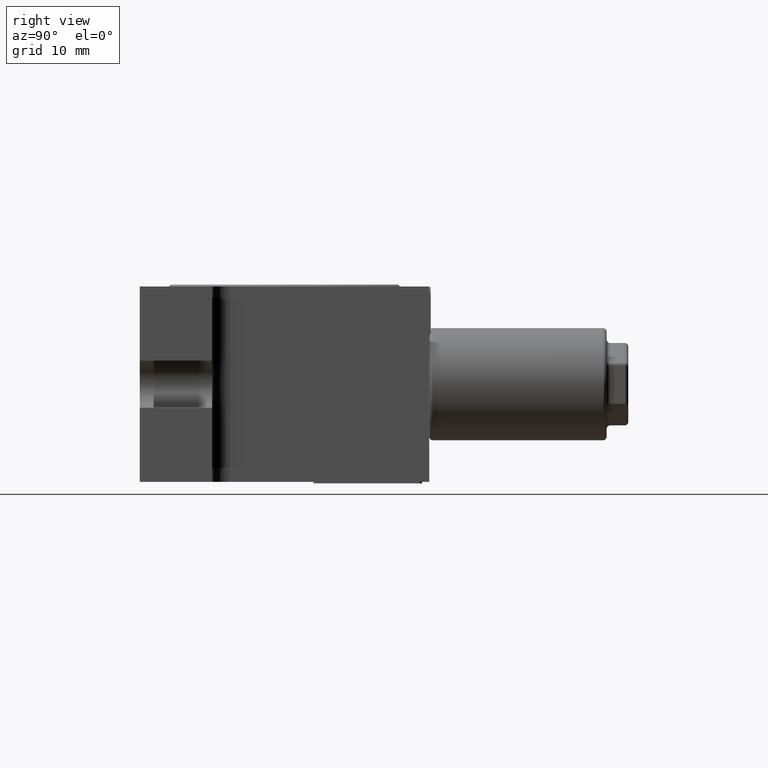
[diagram: clean part render]
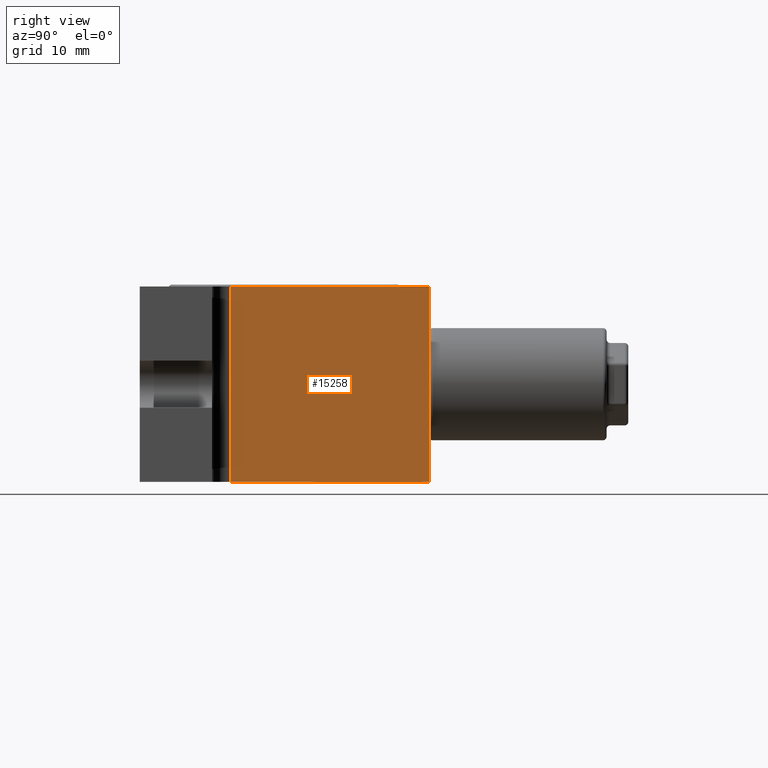
[diagram: same view with one face highlighted and labeled with its STEP entity id]
A machine part, right view. The second image highlights one B-rep face of the part: STEP entity #15258.
In plain terms, the highlighted planar face has unit normal (-1, 0, 0).
Its self-contained STEP definition (entity closure, byte-faithful):
#1023 = CARTESIAN_POINT ( 'NONE',  ( 20.00000000000000000, 20.00000000000000000, 13.50000000000000000 ) ) ;
#1030 = ORIENTED_EDGE ( 'NONE', *, *, #23257, .T. ) ;
#1065 = VECTOR ( 'NONE', #22678, 1000.000000000000000 ) ;
#2029 = ORIENTED_EDGE ( 'NONE', *, *, #4028, .T. ) ;
#3037 = DIRECTION ( 'NONE',  ( 0.0000000000000000000, 0.0000000000000000000, 1.000000000000000000 ) ) ;
#4028 = EDGE_CURVE ( 'NONE', #4527, #13578, #16402, .T. ) ;
#4527 = VERTEX_POINT ( 'NONE', #22055 ) ;
#4857 = LINE ( 'NONE', #16434, #19182 ) ;
#4950 = AXIS2_PLACEMENT_3D ( 'NONE', #16456, #9137, #3037 ) ;
#4961 = PLANE ( 'NONE',  #4950 ) ;
#5504 = EDGE_CURVE ( 'NONE', #17760, #13578, #8255, .T. ) ;
#5576 = VECTOR ( 'NONE', #10614, 1000.000000000000000 ) ;
#5833 = EDGE_LOOP ( 'NONE', ( #5950, #2029, #16548, #1030 ) ) ;
#5950 = ORIENTED_EDGE ( 'NONE', *, *, #20218, .T. ) ;
#6220 = CARTESIAN_POINT ( 'NONE',  ( 20.00000000000000000, 20.00000000000000000, -13.50000000000000000 ) ) ;
#7259 = CARTESIAN_POINT ( 'NONE',  ( 20.00000000000000000, -7.500000000000000000, -13.50000000000000000 ) ) ;
#8255 = LINE ( 'NONE', #6220, #1065 ) ;
#9137 = DIRECTION ( 'NONE',  ( -1.000000000000000000, 0.0000000000000000000, 0.0000000000000000000 ) ) ;
#9394 = DIRECTION ( 'NONE',  ( -0.0000000000000000000, -0.0000000000000000000, -1.000000000000000000 ) ) ;
#10614 = DIRECTION ( 'NONE',  ( 0.0000000000000000000, -1.000000000000000000, 0.0000000000000000000 ) ) ;
#11503 = VECTOR ( 'NONE', #9394, 1000.000000000000000 ) ;
#12359 = VERTEX_POINT ( 'NONE', #1023 ) ;
#13578 = VERTEX_POINT ( 'NONE', #22430 ) ;
#15258 = ADVANCED_FACE ( 'NONE', ( #21832 ), #4961, .F. ) ;
#16402 = LINE ( 'NONE', #7259, #11503 ) ;
#16434 = CARTESIAN_POINT ( 'NONE',  ( 20.00000000000000000, 20.00000000000000000, -13.50000000000000000 ) ) ;
#16456 = CARTESIAN_POINT ( 'NONE',  ( 20.00000000000000000, 20.00000000000000000, -13.50000000000000000 ) ) ;
#16548 = ORIENTED_EDGE ( 'NONE', *, *, #5504, .F. ) ;
#16586 = DIRECTION ( 'NONE',  ( 0.0000000000000000000, 0.0000000000000000000, 1.000000000000000000 ) ) ;
#17655 = LINE ( 'NONE', #17919, #5576 ) ;
#17760 = VERTEX_POINT ( 'NONE', #21207 ) ;
#17919 = CARTESIAN_POINT ( 'NONE',  ( 20.00000000000000000, 20.00000000000000000, 13.50000000000000000 ) ) ;
#19182 = VECTOR ( 'NONE', #16586, 1000.000000000000000 ) ;
#20218 = EDGE_CURVE ( 'NONE', #12359, #4527, #17655, .T. ) ;
#21207 = CARTESIAN_POINT ( 'NONE',  ( 20.00000000000000000, 20.00000000000000000, -13.50000000000000000 ) ) ;
#21832 = FACE_OUTER_BOUND ( 'NONE', #5833, .T. ) ;
#22055 = CARTESIAN_POINT ( 'NONE',  ( 20.00000000000000000, -7.500000000000000000, 13.50000000000000000 ) ) ;
#22430 = CARTESIAN_POINT ( 'NONE',  ( 20.00000000000000000, -7.500000000000000000, -13.50000000000000000 ) ) ;
#22678 = DIRECTION ( 'NONE',  ( 0.0000000000000000000, -1.000000000000000000, 0.0000000000000000000 ) ) ;
#23257 = EDGE_CURVE ( 'NONE', #17760, #12359, #4857, .T. ) ;